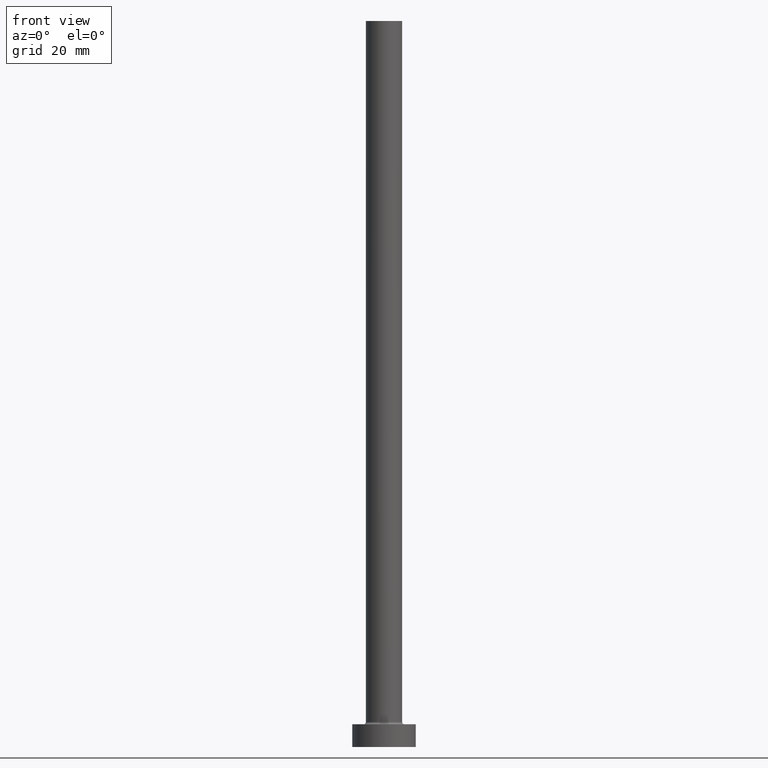
[diagram: clean part render]
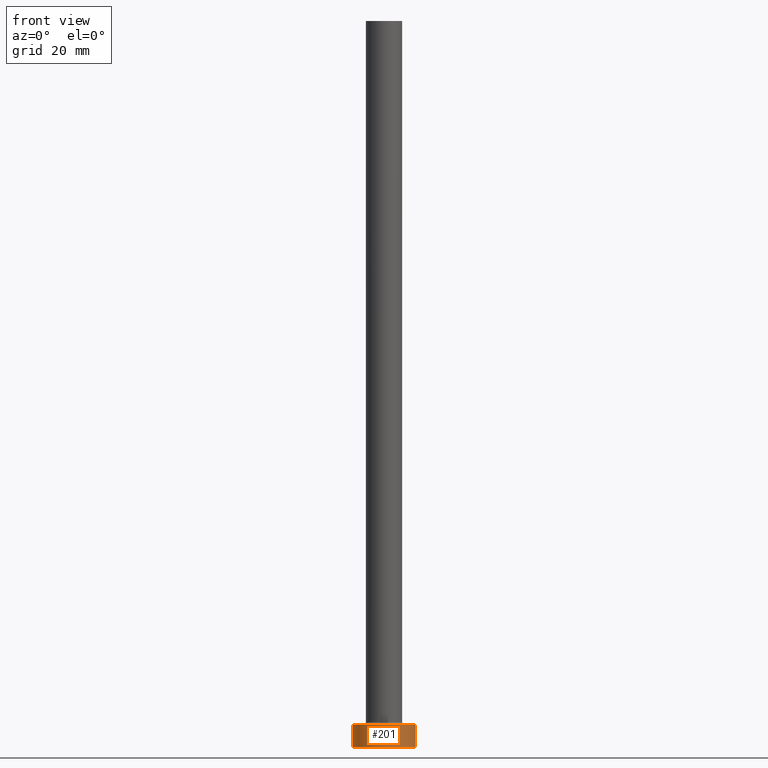
[diagram: same view with one face highlighted and labeled with its STEP entity id]
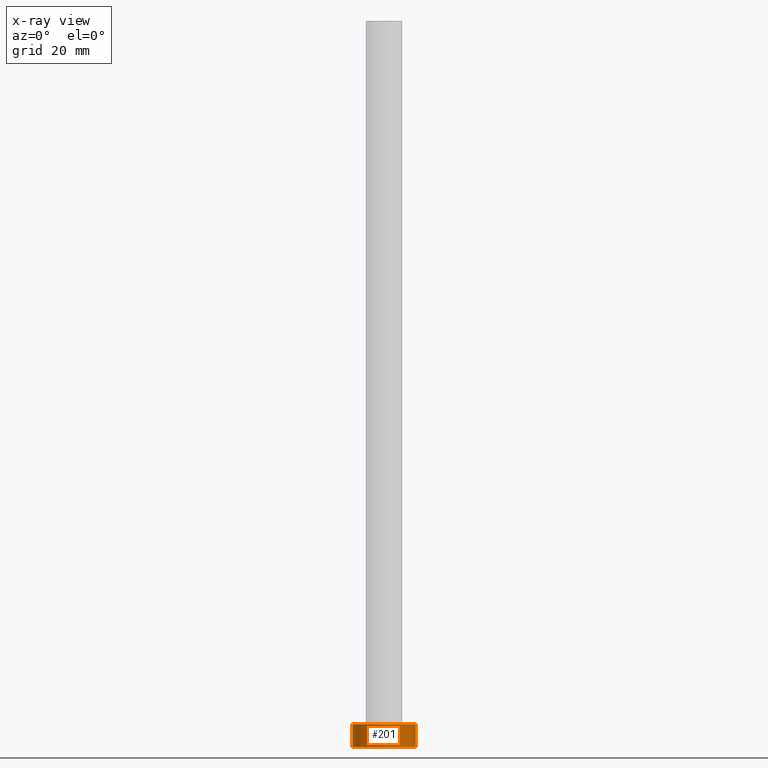
[diagram: x-ray of the same camera — body ghosted, the highlighted face saturated]
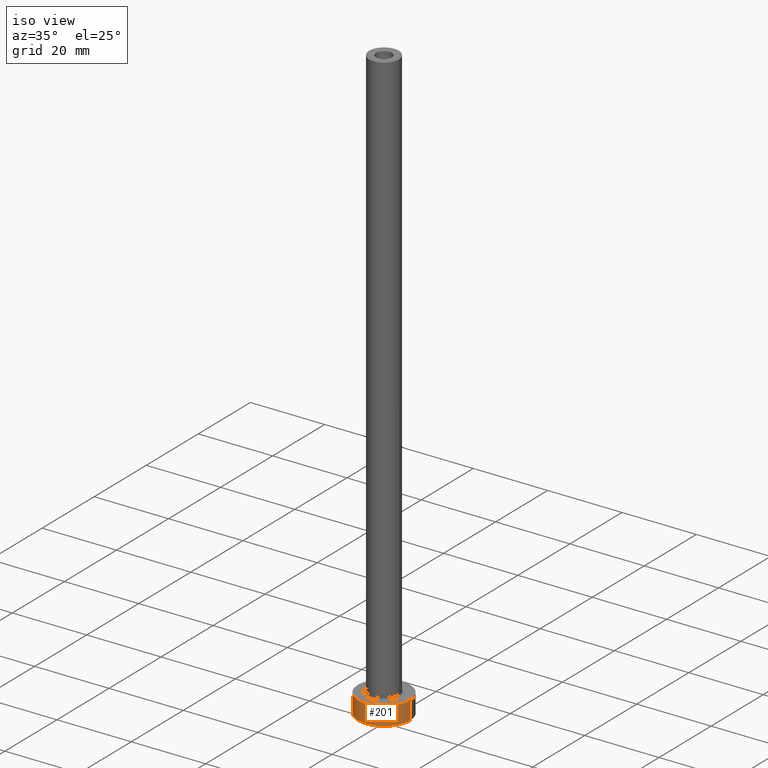
[diagram: same view with one face highlighted and labeled with its STEP entity id]
A machine part, front view. The second image highlights one B-rep face of the part: STEP entity #201.
The next image is the same camera in x-ray: the body ghosted, the highlighted face saturated — about 0% of this face is hidden behind the body in this view.
A second angle (iso view) of the same face is appended — the face is thin or edge-on in the first view.
In plain terms, the highlighted cylindrical surface (edge-blend (fillet) strip) has radius 7 mm, axis along (-0, -0, -1).
Its self-contained STEP definition (entity closure, byte-faithful):
#1 = DIRECTION ( 'NONE',  ( 0.000000000000000000, 0.000000000000000000, 1.000000000000000000 ) ) ;
#5 = ORIENTED_EDGE ( 'NONE', *, *, #404, .T. ) ;
#19 = CARTESIAN_POINT ( 'NONE',  ( 7.000000000000000000, 8.572527594031473190E-16, 0.000000000000000000 ) ) ;
#35 = DIRECTION ( 'NONE',  ( -1.000000000000000000, 0.000000000000000000, 0.000000000000000000 ) ) ;
#38 = LINE ( 'NONE', #427, #402 ) ;
#53 = ORIENTED_EDGE ( 'NONE', *, *, #249, .F. ) ;
#111 = VERTEX_POINT ( 'NONE', #242 ) ;
#112 = CYLINDRICAL_SURFACE ( 'NONE', #456, 7.000000000000000000 ) ;
#125 = CARTESIAN_POINT ( 'NONE',  ( 7.000000000000000000, 8.572527594031473190E-16, 5.000000000000000000 ) ) ;
#155 = EDGE_CURVE ( 'NONE', #196, #296, #385, .T. ) ;
#180 = AXIS2_PLACEMENT_3D ( 'NONE', #321, #1, #219 ) ;
#188 = VECTOR ( 'NONE', #366, 1000.000000000000000 ) ;
#190 = DIRECTION ( 'NONE',  ( 0.000000000000000000, 0.000000000000000000, 1.000000000000000000 ) ) ;
#196 = VERTEX_POINT ( 'NONE', #292 ) ;
#201 = ADVANCED_FACE ( 'NONE', ( #436 ), #112, .T. ) ;
#219 = DIRECTION ( 'NONE',  ( 1.000000000000000000, 0.000000000000000000, 0.000000000000000000 ) ) ;
#220 = VERTEX_POINT ( 'NONE', #125 ) ;
#224 = CIRCLE ( 'NONE', #378, 7.000000000000000000 ) ;
#242 = CARTESIAN_POINT ( 'NONE',  ( -7.000000000000000000, 0.000000000000000000, 5.000000000000000000 ) ) ;
#249 = EDGE_CURVE ( 'NONE', #111, #220, #224, .T. ) ;
#258 = CARTESIAN_POINT ( 'NONE',  ( 0.000000000000000000, 0.000000000000000000, 5.000000000000000000 ) ) ;
#288 = DIRECTION ( 'NONE',  ( -0.000000000000000000, -0.000000000000000000, -1.000000000000000000 ) ) ;
#292 = CARTESIAN_POINT ( 'NONE',  ( -7.000000000000000000, 0.000000000000000000, 0.000000000000000000 ) ) ;
#295 = DIRECTION ( 'NONE',  ( 1.000000000000000000, 0.000000000000000000, 0.000000000000000000 ) ) ;
#296 = VERTEX_POINT ( 'NONE', #19 ) ;
#299 = EDGE_LOOP ( 'NONE', ( #441, #53, #5, #408 ) ) ;
#321 = CARTESIAN_POINT ( 'NONE',  ( 0.000000000000000000, 0.000000000000000000, 0.000000000000000000 ) ) ;
#357 = DIRECTION ( 'NONE',  ( -0.000000000000000000, -0.000000000000000000, -1.000000000000000000 ) ) ;
#366 = DIRECTION ( 'NONE',  ( -0.000000000000000000, -0.000000000000000000, -1.000000000000000000 ) ) ;
#378 = AXIS2_PLACEMENT_3D ( 'NONE', #449, #190, #295 ) ;
#385 = CIRCLE ( 'NONE', #180, 7.000000000000000000 ) ;
#393 = LINE ( 'NONE', #435, #188 ) ;
#402 = VECTOR ( 'NONE', #288, 1000.000000000000000 ) ;
#404 = EDGE_CURVE ( 'NONE', #111, #196, #393, .T. ) ;
#408 = ORIENTED_EDGE ( 'NONE', *, *, #155, .T. ) ;
#425 = EDGE_CURVE ( 'NONE', #220, #296, #38, .T. ) ;
#427 = CARTESIAN_POINT ( 'NONE',  ( 7.000000000000000000, 8.572527594031473190E-16, 5.000000000000000000 ) ) ;
#435 = CARTESIAN_POINT ( 'NONE',  ( -7.000000000000000000, 0.000000000000000000, 5.000000000000000000 ) ) ;
#436 = FACE_OUTER_BOUND ( 'NONE', #299, .T. ) ;
#441 = ORIENTED_EDGE ( 'NONE', *, *, #425, .F. ) ;
#449 = CARTESIAN_POINT ( 'NONE',  ( 0.000000000000000000, 0.000000000000000000, 5.000000000000000000 ) ) ;
#456 = AXIS2_PLACEMENT_3D ( 'NONE', #258, #357, #35 ) ;